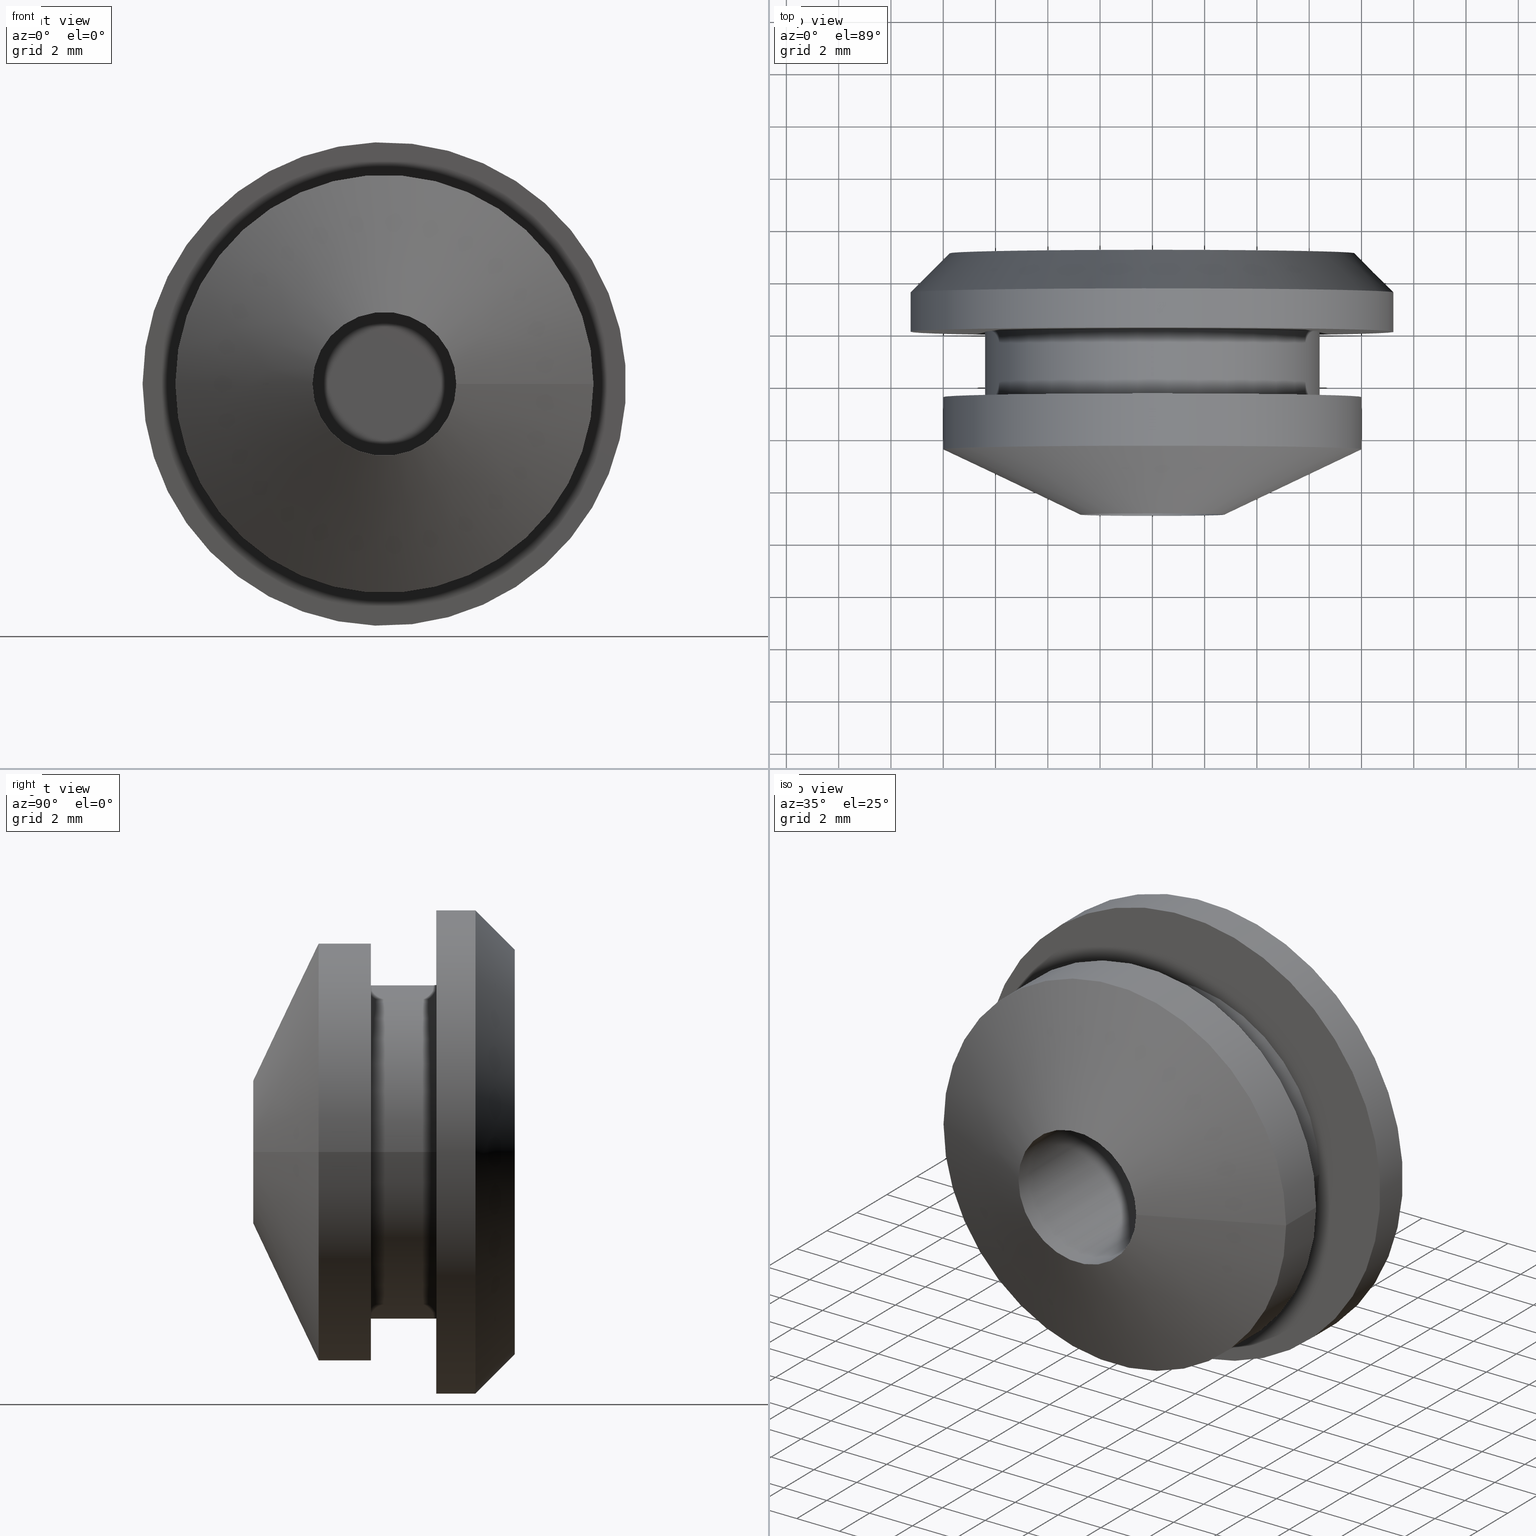
[diagram: canonical four-view strip — front | top / right | iso, engineering-drawing reading convention]
A machine part, canonical four-view strip (front | top / right | iso — engineering-drawing reading convention). The complete STEP part file that produces these views, byte-faithful:
ISO-10303-21;
HEADER;
/* Generated by software containing ST-Developer
 * from STEP Tools, Inc. (www.steptools.com) 
 */

FILE_DESCRIPTION(
/* description */ (''),
/* implementation_level */ '2;1');

FILE_NAME(
/* name */ '\\\\SYNOLOGYNAS\\web\\db2\\PR3-13\\\X2\B3C4BA74\X0\\\DR_PR
3-13.stp',
/* time_stamp */ '2024-02-16T13:43:14+09:00',
/* author */ ('user'),
/* organization */ (''),
/* preprocessor_version */ 'ST-DEVELOPER v15.6',
/* originating_system */ 'Autodesk Inventor 2015',
/* authorisation */ '');

FILE_SCHEMA (('AUTOMOTIVE_DESIGN { 1 0 10303 214 3 1 1 }'));
ENDSEC;

DATA;
#10=MECHANICAL_DESIGN_GEOMETRIC_PRESENTATION_REPRESENTATION('',(#13),#209);
#11=SHAPE_REPRESENTATION_RELATIONSHIP('SRR','None',#218,#12);
#12=ADVANCED_BREP_SHAPE_REPRESENTATION($,(#14),#208);
#13=STYLED_ITEM('',(#227),#14);
#14=MANIFOLD_SOLID_BREP('\X2\C194B9ACB4DC\X0\1',#116);
#15=PLANE('',#123);
#16=PLANE('',#127);
#17=PLANE('',#130);
#18=PLANE('',#136);
#19=CYLINDRICAL_SURFACE('',#121,9.25);
#20=CYLINDRICAL_SURFACE('',#124,2.75);
#21=CYLINDRICAL_SURFACE('',#133,8.);
#22=CYLINDRICAL_SURFACE('',#134,6.4);
#23=FACE_BOUND('',#42,.T.);
#24=FACE_BOUND('',#44,.T.);
#25=FACE_BOUND('',#47,.T.);
#26=FACE_BOUND('',#50,.T.);
#27=FACE_BOUND('',#52,.T.);
#28=FACE_BOUND('',#54,.T.);
#29=FACE_BOUND('',#56,.T.);
#30=FACE_BOUND('',#58,.T.);
#31=FACE_OUTER_BOUND('',#41,.T.);
#32=FACE_OUTER_BOUND('',#43,.T.);
#33=FACE_OUTER_BOUND('',#45,.T.);
#34=FACE_OUTER_BOUND('',#46,.T.);
#35=FACE_OUTER_BOUND('',#48,.T.);
#36=FACE_OUTER_BOUND('',#49,.T.);
#37=FACE_OUTER_BOUND('',#51,.T.);
#38=FACE_OUTER_BOUND('',#53,.T.);
#39=FACE_OUTER_BOUND('',#55,.T.);
#40=FACE_OUTER_BOUND('',#57,.T.);
#41=EDGE_LOOP('',(#86));
#42=EDGE_LOOP('',(#87));
#43=EDGE_LOOP('',(#88));
#44=EDGE_LOOP('',(#89));
#45=EDGE_LOOP('',(#90));
#46=EDGE_LOOP('',(#91));
#47=EDGE_LOOP('',(#92));
#48=EDGE_LOOP('',(#93));
#49=EDGE_LOOP('',(#94));
#50=EDGE_LOOP('',(#95));
#51=EDGE_LOOP('',(#96));
#52=EDGE_LOOP('',(#97));
#53=EDGE_LOOP('',(#98));
#54=EDGE_LOOP('',(#99));
#55=EDGE_LOOP('',(#100));
#56=EDGE_LOOP('',(#101));
#57=EDGE_LOOP('',(#102));
#58=EDGE_LOOP('',(#103));
#59=CIRCLE('',#119,9.25);
#60=CIRCLE('',#120,7.75);
#61=CIRCLE('',#122,9.25);
#62=CIRCLE('',#125,2.75);
#63=CIRCLE('',#126,2.75);
#64=CIRCLE('',#129,8.);
#65=CIRCLE('',#131,8.);
#66=CIRCLE('',#132,6.4);
#67=CIRCLE('',#135,6.4);
#68=VERTEX_POINT('',#179);
#69=VERTEX_POINT('',#181);
#70=VERTEX_POINT('',#184);
#71=VERTEX_POINT('',#188);
#72=VERTEX_POINT('',#190);
#73=VERTEX_POINT('',#194);
#74=VERTEX_POINT('',#197);
#75=VERTEX_POINT('',#199);
#76=VERTEX_POINT('',#203);
#77=EDGE_CURVE('',#68,#68,#59,.T.);
#78=EDGE_CURVE('',#69,#69,#60,.T.);
#79=EDGE_CURVE('',#70,#70,#61,.T.);
#80=EDGE_CURVE('',#71,#71,#62,.T.);
#81=EDGE_CURVE('',#72,#72,#63,.T.);
#82=EDGE_CURVE('',#73,#73,#64,.T.);
#83=EDGE_CURVE('',#74,#74,#65,.T.);
#84=EDGE_CURVE('',#75,#75,#66,.T.);
#85=EDGE_CURVE('',#76,#76,#67,.T.);
#86=ORIENTED_EDGE('',*,*,#77,.T.);
#87=ORIENTED_EDGE('',*,*,#78,.T.);
#88=ORIENTED_EDGE('',*,*,#79,.F.);
#89=ORIENTED_EDGE('',*,*,#77,.F.);
#90=ORIENTED_EDGE('',*,*,#78,.F.);
#91=ORIENTED_EDGE('',*,*,#80,.T.);
#92=ORIENTED_EDGE('',*,*,#81,.F.);
#93=ORIENTED_EDGE('',*,*,#80,.F.);
#94=ORIENTED_EDGE('',*,*,#82,.T.);
#95=ORIENTED_EDGE('',*,*,#81,.T.);
#96=ORIENTED_EDGE('',*,*,#83,.T.);
#97=ORIENTED_EDGE('',*,*,#84,.T.);
#98=ORIENTED_EDGE('',*,*,#82,.F.);
#99=ORIENTED_EDGE('',*,*,#83,.F.);
#100=ORIENTED_EDGE('',*,*,#84,.F.);
#101=ORIENTED_EDGE('',*,*,#85,.F.);
#102=ORIENTED_EDGE('',*,*,#79,.T.);
#103=ORIENTED_EDGE('',*,*,#85,.T.);
#104=CONICAL_SURFACE('',#118,8.5,45.);
#105=CONICAL_SURFACE('',#128,8.,64.5366549381284);
#106=ADVANCED_FACE('',(#31,#23),#104,.T.);
#107=ADVANCED_FACE('',(#32,#24),#19,.T.);
#108=ADVANCED_FACE('',(#33),#15,.T.);
#109=ADVANCED_FACE('',(#34,#25),#20,.F.);
#110=ADVANCED_FACE('',(#35),#16,.F.);
#111=ADVANCED_FACE('',(#36,#26),#105,.T.);
#112=ADVANCED_FACE('',(#37,#27),#17,.T.);
#113=ADVANCED_FACE('',(#38,#28),#21,.T.);
#114=ADVANCED_FACE('',(#39,#29),#22,.T.);
#115=ADVANCED_FACE('',(#40,#30),#18,.F.);
#116=CLOSED_SHELL('',(#106,#107,#108,#109,#110,#111,#112,#113,#114,#115));
#117=AXIS2_PLACEMENT_3D('placement',#177,#137,#138);
#118=AXIS2_PLACEMENT_3D('',#178,#139,#140);
#119=AXIS2_PLACEMENT_3D('',#180,#141,#142);
#120=AXIS2_PLACEMENT_3D('',#182,#143,#144);
#121=AXIS2_PLACEMENT_3D('',#183,#145,#146);
#122=AXIS2_PLACEMENT_3D('',#185,#147,#148);
#123=AXIS2_PLACEMENT_3D('',#186,#149,#150);
#124=AXIS2_PLACEMENT_3D('',#187,#151,#152);
#125=AXIS2_PLACEMENT_3D('',#189,#153,#154);
#126=AXIS2_PLACEMENT_3D('',#191,#155,#156);
#127=AXIS2_PLACEMENT_3D('',#192,#157,#158);
#128=AXIS2_PLACEMENT_3D('',#193,#159,#160);
#129=AXIS2_PLACEMENT_3D('',#195,#161,#162);
#130=AXIS2_PLACEMENT_3D('',#196,#163,#164);
#131=AXIS2_PLACEMENT_3D('',#198,#165,#166);
#132=AXIS2_PLACEMENT_3D('',#200,#167,#168);
#133=AXIS2_PLACEMENT_3D('',#201,#169,#170);
#134=AXIS2_PLACEMENT_3D('',#202,#171,#172);
#135=AXIS2_PLACEMENT_3D('',#204,#173,#174);
#136=AXIS2_PLACEMENT_3D('',#205,#175,#176);
#137=DIRECTION('axis',(0.,0.,1.));
#138=DIRECTION('refdir',(1.,0.,0.));
#139=DIRECTION('center_axis',(0.,-1.,0.));
#140=DIRECTION('ref_axis',(1.,0.,0.));
#141=DIRECTION('center_axis',(0.,1.,0.));
#142=DIRECTION('ref_axis',(1.,0.,0.));
#143=DIRECTION('center_axis',(0.,-1.,0.));
#144=DIRECTION('ref_axis',(1.,0.,0.));
#145=DIRECTION('center_axis',(0.,1.,0.));
#146=DIRECTION('ref_axis',(1.,0.,0.));
#147=DIRECTION('center_axis',(0.,-1.,0.));
#148=DIRECTION('ref_axis',(1.,0.,0.));
#149=DIRECTION('center_axis',(0.,1.,0.));
#150=DIRECTION('ref_axis',(0.,0.,1.));
#151=DIRECTION('center_axis',(0.,1.,0.));
#152=DIRECTION('ref_axis',(-1.,0.,0.));
#153=DIRECTION('center_axis',(0.,1.,0.));
#154=DIRECTION('ref_axis',(-1.,0.,0.));
#155=DIRECTION('center_axis',(0.,1.,0.));
#156=DIRECTION('ref_axis',(-1.,0.,0.));
#157=DIRECTION('center_axis',(0.,1.,0.));
#158=DIRECTION('ref_axis',(0.,0.,1.));
#159=DIRECTION('center_axis',(0.,1.,0.));
#160=DIRECTION('ref_axis',(-1.,0.,0.));
#161=DIRECTION('center_axis',(0.,-1.,0.));
#162=DIRECTION('ref_axis',(-1.,0.,0.));
#163=DIRECTION('center_axis',(0.,1.,0.));
#164=DIRECTION('ref_axis',(0.,0.,1.));
#165=DIRECTION('center_axis',(0.,1.,0.));
#166=DIRECTION('ref_axis',(-1.,0.,0.));
#167=DIRECTION('center_axis',(0.,-1.,0.));
#168=DIRECTION('ref_axis',(-1.,0.,0.));
#169=DIRECTION('center_axis',(0.,-1.,0.));
#170=DIRECTION('ref_axis',(-1.,0.,0.));
#171=DIRECTION('center_axis',(0.,-1.,0.));
#172=DIRECTION('ref_axis',(-1.,0.,0.));
#173=DIRECTION('center_axis',(0.,1.,0.));
#174=DIRECTION('ref_axis',(-1.,0.,0.));
#175=DIRECTION('center_axis',(0.,1.,0.));
#176=DIRECTION('ref_axis',(0.,0.,1.));
#177=CARTESIAN_POINT('',(0.,0.,0.));
#178=CARTESIAN_POINT('Origin',(0.,2.25,0.));
#179=CARTESIAN_POINT('',(-9.25,1.5,1.1327982892113E-15));
#180=CARTESIAN_POINT('Origin',(0.,1.5,0.));
#181=CARTESIAN_POINT('',(-7.75,3.,-9.49101269339199E-16));
#182=CARTESIAN_POINT('Origin',(0.,3.,0.));
#183=CARTESIAN_POINT('Origin',(0.,0.,0.));
#184=CARTESIAN_POINT('',(-9.25,0.,1.1327982892113E-15));
#185=CARTESIAN_POINT('Origin',(0.,0.,0.));
#186=CARTESIAN_POINT('Origin',(4.94480226668566E-16,3.,-2.00040184617145E-16));
#187=CARTESIAN_POINT('Origin',(0.,-7.,0.));
#188=CARTESIAN_POINT('',(2.75,-0.499999999999999,3.36777869765522E-16));
#189=CARTESIAN_POINT('Origin',(0.,-0.499999999999999,0.));
#190=CARTESIAN_POINT('',(2.75,-7.,3.36777869765522E-16));
#191=CARTESIAN_POINT('Origin',(0.,-7.,0.));
#192=CARTESIAN_POINT('Origin',(-1.12172627376305E-16,-0.499999999999999,
4.20539024479226E-17));
#193=CARTESIAN_POINT('Origin',(0.,-4.5,0.));
#194=CARTESIAN_POINT('',(8.,-4.5,9.79717439317883E-16));
#195=CARTESIAN_POINT('Origin',(0.,-4.5,0.));
#196=CARTESIAN_POINT('Origin',(-5.44236046870305E-16,-2.5,0.));
#197=CARTESIAN_POINT('',(8.,-2.5,9.79717439317883E-16));
#198=CARTESIAN_POINT('Origin',(0.,-2.5,0.));
#199=CARTESIAN_POINT('',(6.4,-2.5,7.83773951454306E-16));
#200=CARTESIAN_POINT('Origin',(0.,-2.5,0.));
#201=CARTESIAN_POINT('Origin',(0.,-2.5,0.));
#202=CARTESIAN_POINT('Origin',(0.,0.,0.));
#203=CARTESIAN_POINT('',(6.4,0.,7.83773951454306E-16));
#204=CARTESIAN_POINT('Origin',(0.,0.,0.));
#205=CARTESIAN_POINT('Origin',(4.94480226668566E-16,0.,-2.00040184617145E-16));
#206=UNCERTAINTY_MEASURE_WITH_UNIT(LENGTH_MEASURE(0.01),#210,
'DISTANCE_ACCURACY_VALUE',
'Maximum model space distance between geometric entities at asserted c
onnectivities');
#207=UNCERTAINTY_MEASURE_WITH_UNIT(LENGTH_MEASURE(1.E-6),#210,
'DISTANCE_ACCURACY_VALUE',
'Maximum model space distance between geometric entities at asserted c
onnectivities');
#208=(
GEOMETRIC_REPRESENTATION_CONTEXT(3)
GLOBAL_UNCERTAINTY_ASSIGNED_CONTEXT((#206))
GLOBAL_UNIT_ASSIGNED_CONTEXT((#210,#213,#211))
REPRESENTATION_CONTEXT('','3D')
);
#209=(
GEOMETRIC_REPRESENTATION_CONTEXT(3)
GLOBAL_UNCERTAINTY_ASSIGNED_CONTEXT((#207))
GLOBAL_UNIT_ASSIGNED_CONTEXT((#210,#213,#211))
REPRESENTATION_CONTEXT('','3D')
);
#210=(
LENGTH_UNIT()
NAMED_UNIT(*)
SI_UNIT(.MILLI.,.METRE.)
);
#211=(
NAMED_UNIT(*)
SI_UNIT($,.STERADIAN.)
SOLID_ANGLE_UNIT()
);
#212=DIMENSIONAL_EXPONENTS(0.,0.,0.,0.,0.,0.,0.);
#213=(
CONVERSION_BASED_UNIT('degree',#215)
NAMED_UNIT(#212)
PLANE_ANGLE_UNIT()
);
#214=(
NAMED_UNIT(*)
PLANE_ANGLE_UNIT()
SI_UNIT($,.RADIAN.)
);
#215=PLANE_ANGLE_MEASURE_WITH_UNIT(PLANE_ANGLE_MEASURE(0.01745329252),#214);
#216=SHAPE_DEFINITION_REPRESENTATION(#217,#218);
#217=PRODUCT_DEFINITION_SHAPE('',$,#220);
#218=SHAPE_REPRESENTATION('',(#117),#208);
#219=PRODUCT_DEFINITION_CONTEXT('part definition',#224,'design');
#220=PRODUCT_DEFINITION('DR_PR3-13','DR_PR3-13',#221,#219);
#221=PRODUCT_DEFINITION_FORMATION('',$,#226);
#222=PRODUCT_RELATED_PRODUCT_CATEGORY('DR_PR3-13','DR_PR3-13',(#226));
#223=APPLICATION_PROTOCOL_DEFINITION('international standard',
'automotive_design',2009,#224);
#224=APPLICATION_CONTEXT(
'Core Data for Automotive Mechanical Design Process');
#225=PRODUCT_CONTEXT('part definition',#224,'mechanical');
#226=PRODUCT('DR_PR3-13','DR_PR3-13',$,(#225));
#227=PRESENTATION_STYLE_ASSIGNMENT((#228));
#228=SURFACE_STYLE_USAGE(.BOTH.,#229);
#229=SURFACE_SIDE_STYLE($,(#230));
#230=SURFACE_STYLE_FILL_AREA(#231);
#231=FILL_AREA_STYLE($,(#232));
#232=FILL_AREA_STYLE_COLOUR($,#233);
#233=COLOUR_RGB('',1.,1.,1.);
ENDSEC;
END-ISO-10303-21;
